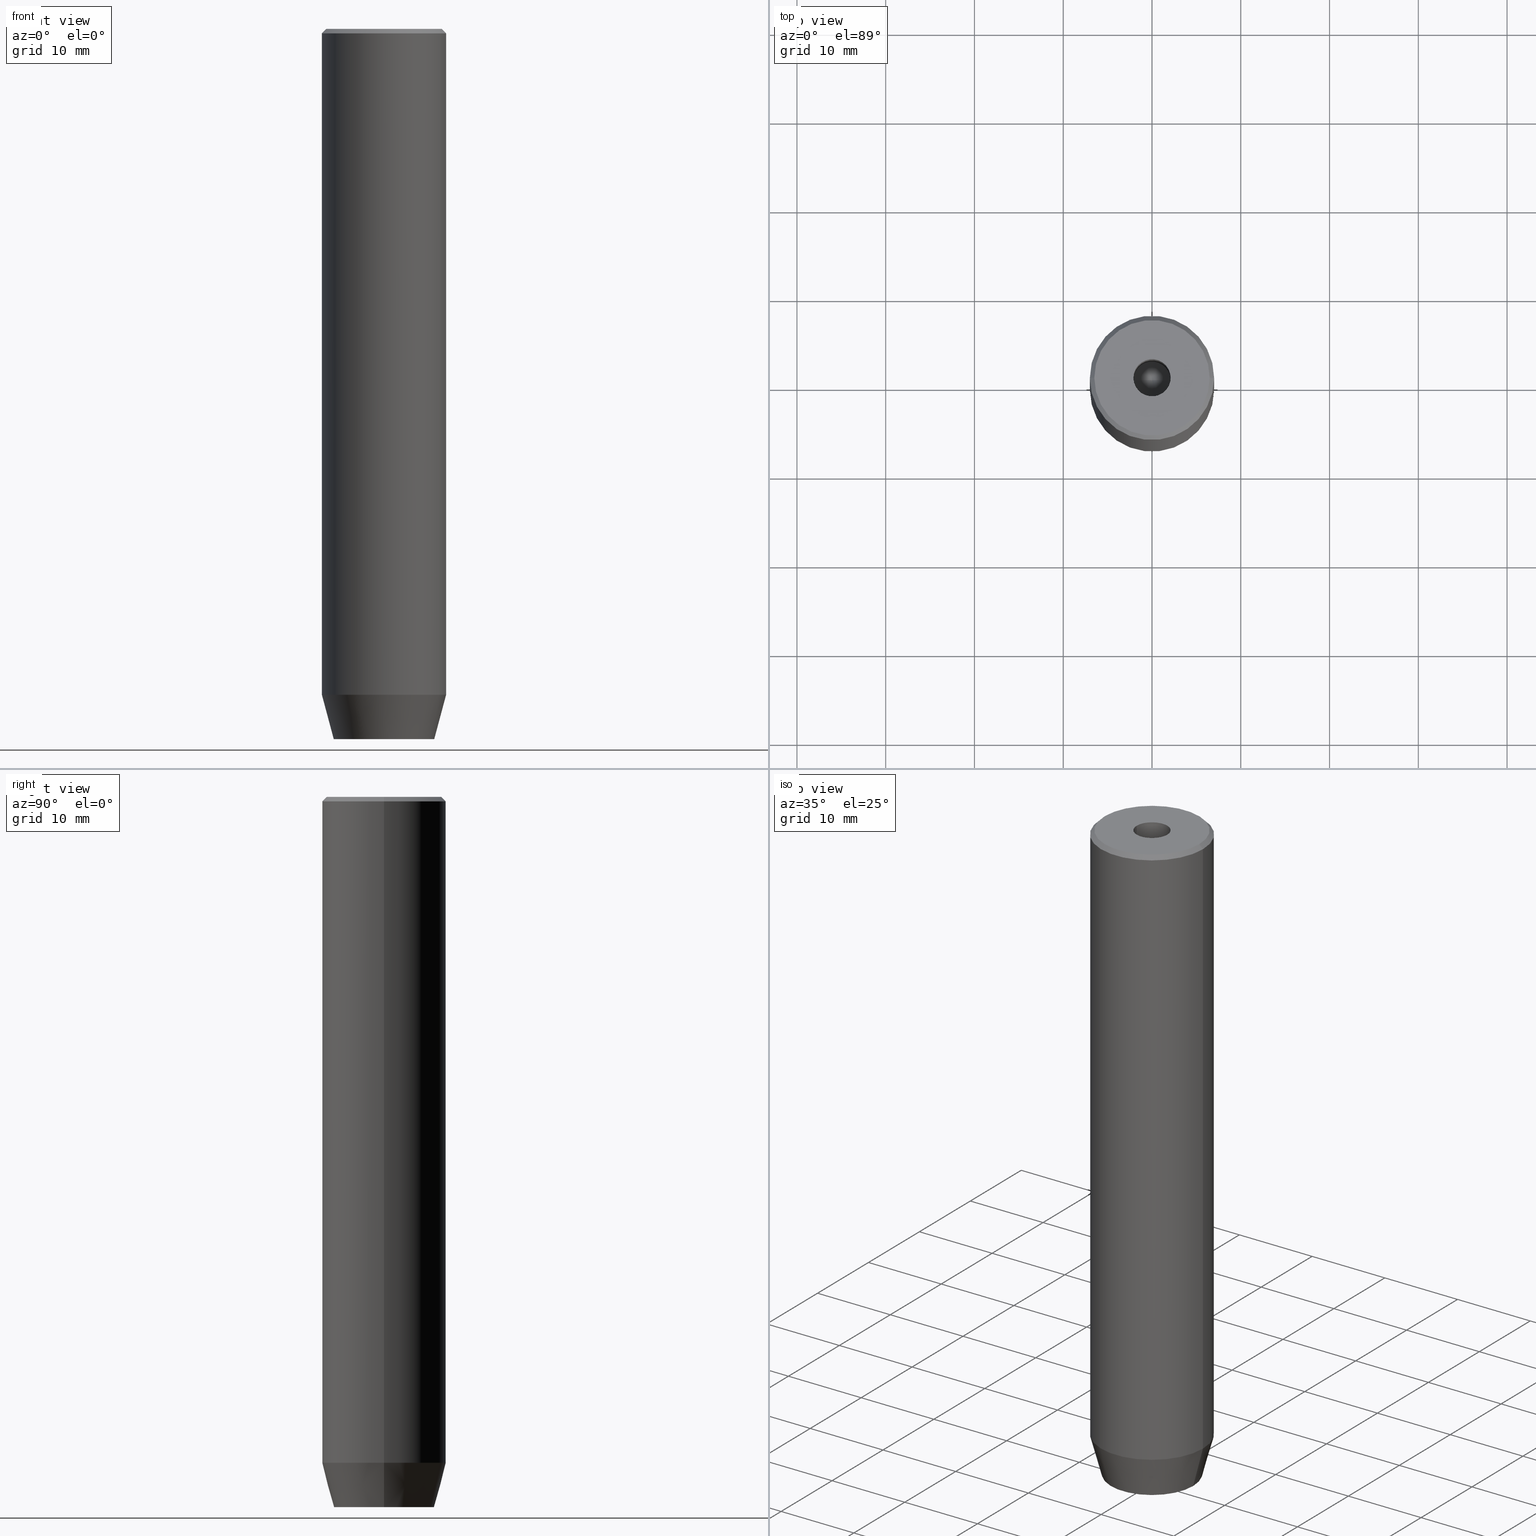
[diagram: canonical four-view strip — front | top / right | iso, engineering-drawing reading convention]
A machine part, canonical four-view strip (front | top / right | iso — engineering-drawing reading convention). The complete STEP part file that produces these views, byte-faithful:
ISO-10303-21;
HEADER;
FILE_DESCRIPTION (( 'STEP AP203' ),
    '1' );
FILE_NAME ('52ea.STEP',
    '2024-01-02T21:53:47',
    ( '' ),
    ( '' ),
    'SwSTEP 2.0',
    'SolidWorks 2019',
    '' );
FILE_SCHEMA (( 'CONFIG_CONTROL_DESIGN' ));
ENDSEC;

DATA;
#1 = LINE ( 'NONE', #492, #580 ) ;
#2 = VECTOR ( 'NONE', #579, 1000.000000000000000 ) ;
#3 = VERTEX_POINT ( 'NONE', #572 ) ;
#4 = DIRECTION ( 'NONE',  ( -0.000000000000000000, -0.000000000000000000, 1.000000000000000000 ) ) ;
#5 = PLANE ( 'NONE',  #430 ) ;
#6 = ORIENTED_EDGE ( 'NONE', *, *, #507, .F. ) ;
#7 = DIRECTION ( 'NONE',  ( 1.000000000000000000, 0.000000000000000000, 0.000000000000000000 ) ) ;
#8 = DIRECTION ( 'NONE',  ( 0.000000000000000000, -0.000000000000000000, 1.000000000000000000 ) ) ;
#9 = ORIENTED_EDGE ( 'NONE', *, *, #253, .F. ) ;
#10 = LINE ( 'NONE', #192, #479 ) ;
#11 = LINE ( 'NONE', #238, #168 ) ;
#12 = ORIENTED_EDGE ( 'NONE', *, *, #484, .T. ) ;
#13 = AXIS2_PLACEMENT_3D ( 'NONE', #178, #43, #88 ) ;
#14 = EDGE_CURVE ( 'NONE', #498, #266, #106, .T. ) ;
#15 = CARTESIAN_POINT ( 'NONE',  ( 0.000000000000000000, 0.000000000000000000, -77.20000000000001705 ) ) ;
#16 = EDGE_LOOP ( 'NONE', ( #370, #559 ) ) ;
#17 = DATE_TIME_ROLE ( 'classification_date' ) ;
#18 = DIRECTION ( 'NONE',  ( 0.000000000000000000, 0.000000000000000000, -1.000000000000000000 ) ) ;
#19 = APPROVAL ( #200, 'NEUR�EN�' ) ;
#20 = APPROVAL ( #391, 'NEUR�EN�' ) ;
#21 = VERTEX_POINT ( 'NONE', #256 ) ;
#22 = CARTESIAN_POINT ( 'NONE',  ( 1.249999999999999778, -2.165063509461096380, -80.00000000000001421 ) ) ;
#23 = ORIENTED_EDGE ( 'NONE', *, *, #439, .F. ) ;
#24 = CIRCLE ( 'NONE', #493, 7.000000000000000000 ) ;
#25 = CIRCLE ( 'NONE', #440, 2.099999999999998757 ) ;
#26 = ORIENTED_EDGE ( 'NONE', *, *, #521, .F. ) ;
#27 = EDGE_CURVE ( 'NONE', #316, #555, #556, .T. ) ;
#28 = FACE_OUTER_BOUND ( 'NONE', #153, .T. ) ;
#29 = APPROVAL_DATE_TIME ( #434, #19 ) ;
#30 = DIRECTION ( 'NONE',  ( 0.000000000000000000, 0.000000000000000000, -1.000000000000000000 ) ) ;
#31 = PERSON_AND_ORGANIZATION ( #463, #120 ) ;
#32 = AXIS2_PLACEMENT_3D ( 'NONE', #84, #258, #123 ) ;
#33 = ADVANCED_FACE ( 'NONE', ( #443 ), #575, .T. ) ;
#34 = DIRECTION ( 'NONE',  ( 1.000000000000000000, 0.000000000000000000, 0.000000000000000000 ) ) ;
#35 = DATE_AND_TIME ( #280, #342 ) ;
#36 = PLANE ( 'NONE',  #119 ) ;
#37 = EDGE_CURVE ( 'NONE', #319, #68, #396, .T. ) ;
#38 = CARTESIAN_POINT ( 'NONE',  ( 2.500000000000000000, 0.000000000000000000, -80.00000000000001421 ) ) ;
#39 = VECTOR ( 'NONE', #582, 1000.000000000000000 ) ;
#40 = CONICAL_SURFACE ( 'NONE', #111, 2.099999999999996980, 1.029744258676652535 ) ;
#41 = CARTESIAN_POINT ( 'NONE',  ( -7.000000000000000000, 8.572527594031473190E-16, -75.00000000000001421 ) ) ;
#42 = CC_DESIGN_PERSON_AND_ORGANIZATION_ASSIGNMENT ( #343, #418, ( #85 ) ) ;
#43 = DIRECTION ( 'NONE',  ( -0.000000000000000000, -0.000000000000000000, 1.000000000000000000 ) ) ;
#44 = ORIENTED_EDGE ( 'NONE', *, *, #250, .T. ) ;
#45 = CARTESIAN_POINT ( 'NONE',  ( -1.249999999999999556, -2.165063509461096825, -80.00000000000001421 ) ) ;
#46 = CARTESIAN_POINT ( 'NONE',  ( 0.000000000000000000, -2.886751345948128211, -80.00000000000001421 ) ) ;
#47 = ORIENTED_EDGE ( 'NONE', *, *, #69, .F. ) ;
#48 = CARTESIAN_POINT ( 'NONE',  ( 7.000000000000000000, 0.000000000000000000, -75.00000000000001421 ) ) ;
#49 = CARTESIAN_POINT ( 'NONE',  ( 0.000000000000000000, 0.000000000000000000, 0.000000000000000000 ) ) ;
#50 = AXIS2_PLACEMENT_3D ( 'NONE', #341, #530, #254 ) ;
#51 = LOCAL_TIME ( 22, 53, 47.00000000000000000, #346 ) ;
#52 = ORIENTED_EDGE ( 'NONE', *, *, #27, .T. ) ;
#53 = PLANE ( 'NONE',  #545 ) ;
#54 = DIRECTION ( 'NONE',  ( -0.8660254037844387076, 0.4999999999999998890, 0.000000000000000000 ) ) ;
#55 = ORIENTED_EDGE ( 'NONE', *, *, #584, .T. ) ;
#56 =( NAMED_UNIT ( * ) PLANE_ANGLE_UNIT ( ) SI_UNIT ( $, .RADIAN. ) );
#57 = DIRECTION ( 'NONE',  ( -1.000000000000000000, 0.000000000000000000, -0.000000000000000000 ) ) ;
#58 = ORIENTED_EDGE ( 'NONE', *, *, #419, .F. ) ;
#59 = ADVANCED_FACE ( 'NONE', ( #28 ), #517, .T. ) ;
#60 = DIRECTION ( 'NONE',  ( 1.000000000000000000, 0.000000000000000000, 0.000000000000000000 ) ) ;
#61 = VECTOR ( 'NONE', #561, 999.9999999999998863 ) ;
#62 = ORIENTED_EDGE ( 'NONE', *, *, #107, .F. ) ;
#63 = COORDINATED_UNIVERSAL_TIME_OFFSET ( 1, 0, .AHEAD. ) ;
#64 = EDGE_CURVE ( 'NONE', #432, #358, #260, .T. ) ;
#65 = FACE_OUTER_BOUND ( 'NONE', #423, .T. ) ;
#66 = VERTEX_POINT ( 'NONE', #386 ) ;
#67 = CARTESIAN_POINT ( 'NONE',  ( -1.250000000000000444, 2.165063509461097269, -77.20000000000001705 ) ) ;
#68 = VERTEX_POINT ( 'NONE', #574 ) ;
#69 = EDGE_CURVE ( 'NONE', #196, #327, #207, .T. ) ;
#70 = EDGE_LOOP ( 'NONE', ( #103, #26, #116, #269 ) ) ;
#71 = AXIS2_PLACEMENT_3D ( 'NONE', #456, #538, #312 ) ;
#72 = CC_DESIGN_APPROVAL ( #19, ( #227 ) ) ;
#73 = ORIENTED_EDGE ( 'NONE', *, *, #455, .F. ) ;
#74 = CALENDAR_DATE ( 2024, 2, 1 ) ;
#75 = CARTESIAN_POINT ( 'NONE',  ( -2.500000000000000444, 0.000000000000000000, -80.00000000000001421 ) ) ;
#76 = SECURITY_CLASSIFICATION_LEVEL ( 'unclassified' ) ;
#77 = ADVANCED_FACE ( 'NONE', ( #577 ), #537, .F. ) ;
#78 = DIRECTION ( 'NONE',  ( 0.000000000000000000, 0.000000000000000000, -1.000000000000000000 ) ) ;
#79 = VECTOR ( 'NONE', #583, 1000.000000000000000 ) ;
#80 = CC_DESIGN_DATE_AND_TIME_ASSIGNMENT ( #241, #17, ( #227 ) ) ;
#81 = ADVANCED_FACE ( 'NONE', ( #295 ), #170, .F. ) ;
#82 = DIRECTION ( 'NONE',  ( 0.8660254037844387076, -0.4999999999999998890, 0.000000000000000000 ) ) ;
#83 = DIRECTION ( 'NONE',  ( 0.5000000000000001110, 0.8660254037844385966, -0.000000000000000000 ) ) ;
#84 = CARTESIAN_POINT ( 'NONE',  ( 0.000000000000000000, 0.000000000000000000, -75.00000000000001421 ) ) ;
#85 = PRODUCT_DEFINITION ( 'NEZN�M�', '', #406, #445 ) ;
#86 = VECTOR ( 'NONE', #411, 1000.000000000000000 ) ;
#87 = VECTOR ( 'NONE', #244, 1000.000000000000000 ) ;
#88 = DIRECTION ( 'NONE',  ( 1.000000000000000000, 0.000000000000000000, 0.000000000000000000 ) ) ;
#89 = ORIENTED_EDGE ( 'NONE', *, *, #476, .T. ) ;
#90 = CARTESIAN_POINT ( 'NONE',  ( 0.000000000000000000, -2.886751345948128211, -77.20000000000001705 ) ) ;
#91 = DIRECTION ( 'NONE',  ( -0.000000000000000000, -0.000000000000000000, 1.000000000000000000 ) ) ;
#92 = ORIENTED_EDGE ( 'NONE', *, *, #394, .F. ) ;
#93 = EDGE_CURVE ( 'NONE', #307, #319, #128, .T. ) ;
#94 = CARTESIAN_POINT ( 'NONE',  ( 7.000000000000000000, 0.000000000000000000, 0.000000000000000000 ) ) ;
#95 = ORIENTED_EDGE ( 'NONE', *, *, #64, .T. ) ;
#96 = DIRECTION ( 'NONE',  ( 0.000000000000000000, 0.000000000000000000, -1.000000000000000000 ) ) ;
#97 = EDGE_CURVE ( 'NONE', #412, #461, #24, .T. ) ;
#98 = CARTESIAN_POINT ( 'NONE',  ( -1.250000000000000444, 2.165063509461097269, -77.20000000000001705 ) ) ;
#99 = CONICAL_SURFACE ( 'NONE', #360, 6.499999999999977796, 0.7853981633974587151 ) ;
#100 = EDGE_LOOP ( 'NONE', ( #206, #47, #58, #337 ) ) ;
#101 = DIRECTION ( 'NONE',  ( -1.000000000000000000, 0.000000000000000000, 0.000000000000000000 ) ) ;
#102 = DIRECTION ( 'NONE',  ( 1.000000000000000000, 0.000000000000000000, 0.000000000000000000 ) ) ;
#103 = ORIENTED_EDGE ( 'NONE', *, *, #245, .F. ) ;
#104 = DIRECTION ( 'NONE',  ( 1.000000000000000000, 0.000000000000000000, 0.000000000000000000 ) ) ;
#105 = CARTESIAN_POINT ( 'NONE',  ( -6.499999999999977796, 0.000000000000000000, 0.000000000000000000 ) ) ;
#106 = LINE ( 'NONE', #163, #261 ) ;
#107 = EDGE_CURVE ( 'NONE', #266, #130, #293, .T. ) ;
#108 = APPROVAL_ROLE ( '' ) ;
#109 = DIRECTION ( 'NONE',  ( 1.000000000000000000, 0.000000000000000000, 0.000000000000000000 ) ) ;
#110 = ORIENTED_EDGE ( 'NONE', *, *, #93, .F. ) ;
#111 = AXIS2_PLACEMENT_3D ( 'NONE', #524, #570, #161 ) ;
#112 = DIRECTION ( 'NONE',  ( -0.000000000000000000, -0.000000000000000000, 1.000000000000000000 ) ) ;
#113 = ORIENTED_EDGE ( 'NONE', *, *, #562, .F. ) ;
#114 = EDGE_CURVE ( 'NONE', #278, #327, #482, .T. ) ;
#115 = CARTESIAN_POINT ( 'NONE',  ( 7.000000000000000000, 0.000000000000000000, -75.00000000000001421 ) ) ;
#116 = ORIENTED_EDGE ( 'NONE', *, *, #403, .T. ) ;
#117 = DIRECTION ( 'NONE',  ( 0.8571673007021113344, 0.000000000000000000, 0.5150380749100558209 ) ) ;
#118 = PERSON_AND_ORGANIZATION_ROLE ( 'creator' ) ;
#119 = AXIS2_PLACEMENT_3D ( 'NONE', #488, #350, #82 ) ;
#120 = ORGANIZATION ( 'NEUR�EN�', 'NEUR�EN�', '' ) ;
#121 = CARTESIAN_POINT ( 'NONE',  ( 0.000000000000000000, 0.000000000000000000, -0.5000000000000117684 ) ) ;
#122 = EDGE_CURVE ( 'NONE', #432, #307, #578, .T. ) ;
#123 = DIRECTION ( 'NONE',  ( 1.000000000000000000, 0.000000000000000000, 0.000000000000000000 ) ) ;
#124 = CARTESIAN_POINT ( 'NONE',  ( 1.250000000000000222, 2.165063509461096825, -77.20000000000001705 ) ) ;
#125 = APPROVAL_DATE_TIME ( #534, #367 ) ;
#126 = DIRECTION ( 'NONE',  ( 0.000000000000000000, 1.000000000000000000, 0.000000000000000000 ) ) ;
#127 = ADVANCED_FACE ( 'NONE', ( #533 ), #36, .F. ) ;
#128 = LINE ( 'NONE', #435, #39 ) ;
#129 = CYLINDRICAL_SURFACE ( 'NONE', #247, 7.000000000000000000 ) ;
#130 = VERTEX_POINT ( 'NONE', #214 ) ;
#131 = FACE_OUTER_BOUND ( 'NONE', #70, .T. ) ;
#132 =( GEOMETRIC_REPRESENTATION_CONTEXT ( 3 ) GLOBAL_UNCERTAINTY_ASSIGNED_CONTEXT ( ( #302 ) ) GLOBAL_UNIT_ASSIGNED_CONTEXT ( ( #320, #56, #276 ) ) REPRESENTATION_CONTEXT ( 'NONE', 'WORKASPACE' ) );
#133 = CARTESIAN_POINT ( 'NONE',  ( -2.099999999999996980, 2.571758278209438013E-16, -15.00000000000000000 ) ) ;
#134 = EDGE_LOOP ( 'NONE', ( #143, #385, #246, #284, #185, #199 ) ) ;
#135 = ADVANCED_FACE ( 'NONE', ( #395 ), #301, .F. ) ;
#136 = DIRECTION ( 'NONE',  ( -0.2588190451025205729, 3.169619151431761860E-17, 0.9659258262890683122 ) ) ;
#137 = DIRECTION ( 'NONE',  ( 1.000000000000000000, 0.000000000000000000, 0.000000000000000000 ) ) ;
#138 = ORIENTED_EDGE ( 'NONE', *, *, #348, .T. ) ;
#139 = CC_DESIGN_PERSON_AND_ORGANIZATION_ASSIGNMENT ( #481, #436, ( #373 ) ) ;
#140 = CARTESIAN_POINT ( 'NONE',  ( 0.000000000000000000, 0.000000000000000000, -1.990051048614449116E-16 ) ) ;
#141 = EDGE_CURVE ( 'NONE', #514, #255, #444, .T. ) ;
#142 = DIRECTION ( 'NONE',  ( 1.000000000000000000, 0.000000000000000000, 0.000000000000000000 ) ) ;
#143 = ORIENTED_EDGE ( 'NONE', *, *, #516, .F. ) ;
#144 = DIRECTION ( 'NONE',  ( -0.000000000000000000, -0.000000000000000000, 1.000000000000000000 ) ) ;
#145 = EDGE_CURVE ( 'NONE', #461, #412, #211, .T. ) ;
#146 = CYLINDRICAL_SURFACE ( 'NONE', #417, 2.099999999999997868 ) ;
#147 = CIRCLE ( 'NONE', #478, 2.099999999999996980 ) ;
#148 = VECTOR ( 'NONE', #329, 1000.000000000000000 ) ;
#149 = ORIENTED_EDGE ( 'NONE', *, *, #122, .T. ) ;
#150 = DIRECTION ( 'NONE',  ( -0.000000000000000000, -0.000000000000000000, 1.000000000000000000 ) ) ;
#151 = CARTESIAN_POINT ( 'NONE',  ( 0.000000000000000000, 0.000000000000000000, 0.000000000000000000 ) ) ;
#152 = EDGE_CURVE ( 'NONE', #68, #3, #1, .T. ) ;
#153 = EDGE_LOOP ( 'NONE', ( #437, #563, #495, #23 ) ) ;
#154 = COORDINATED_UNIVERSAL_TIME_OFFSET ( 1, 0, .AHEAD. ) ;
#155 = CARTESIAN_POINT ( 'NONE',  ( -2.500000000000000444, 0.000000000000000000, -77.20000000000001705 ) ) ;
#156 = ORIENTED_EDGE ( 'NONE', *, *, #245, .T. ) ;
#157 = DATE_TIME_ROLE ( 'creation_date' ) ;
#158 = DIRECTION ( 'NONE',  ( -0.000000000000000000, -0.000000000000000000, 1.000000000000000000 ) ) ;
#159 = VERTEX_POINT ( 'NONE', #46 ) ;
#160 = CONICAL_SURFACE ( 'NONE', #518, 2.099999999999996980, 1.029744258676652535 ) ;
#161 = DIRECTION ( 'NONE',  ( 1.000000000000000000, 0.000000000000000000, 0.000000000000000000 ) ) ;
#162 = ORIENTED_EDGE ( 'NONE', *, *, #93, .T. ) ;
#163 = CARTESIAN_POINT ( 'NONE',  ( 2.099999999999996980, 0.000000000000000000, -15.00000000000000000 ) ) ;
#164 = CARTESIAN_POINT ( 'NONE',  ( -2.500000000000000444, 1.443375672974064772, -77.20000000000001705 ) ) ;
#165 = CARTESIAN_POINT ( 'NONE',  ( 0.000000000000000000, 0.000000000000000000, 0.000000000000000000 ) ) ;
#166 = VECTOR ( 'NONE', #462, 1000.000000000000000 ) ;
#167 = AXIS2_PLACEMENT_3D ( 'NONE', #303, #78, #390 ) ;
#168 = VECTOR ( 'NONE', #158, 1000.000000000000000 ) ;
#169 = ADVANCED_FACE ( 'NONE', ( #222 ), #447, .T. ) ;
#170 = PLANE ( 'NONE',  #50 ) ;
#171 = DIRECTION ( 'NONE',  ( 0.8660254037844385966, -0.5000000000000001110, 0.000000000000000000 ) ) ;
#172 = CARTESIAN_POINT ( 'NONE',  ( -1.084202172485504434E-16, 2.886751345948129543, -77.20000000000001705 ) ) ;
#173 = EDGE_CURVE ( 'NONE', #555, #461, #216, .T. ) ;
#174 = AXIS2_PLACEMENT_3D ( 'NONE', #217, #150, #270 ) ;
#175 = CARTESIAN_POINT ( 'NONE',  ( 0.000000000000000000, 0.000000000000000000, -0.5000000000000117684 ) ) ;
#176 = LINE ( 'NONE', #502, #281 ) ;
#177 = DIRECTION ( 'NONE',  ( 1.000000000000000000, 0.000000000000000000, 0.000000000000000000 ) ) ;
#178 = CARTESIAN_POINT ( 'NONE',  ( 0.000000000000000000, 0.000000000000000000, -75.00000000000001421 ) ) ;
#179 = ORIENTED_EDGE ( 'NONE', *, *, #413, .T. ) ;
#180 = LINE ( 'NONE', #45, #581 ) ;
#181 = VECTOR ( 'NONE', #126, 1000.000000000000000 ) ;
#182 = AXIS2_PLACEMENT_3D ( 'NONE', #165, #442, #527 ) ;
#183 = DIRECTION ( 'NONE',  ( -0.000000000000000000, -0.000000000000000000, 1.000000000000000000 ) ) ;
#184 = ADVANCED_FACE ( 'NONE', ( #460 ), #398, .F. ) ;
#185 = ORIENTED_EDGE ( 'NONE', *, *, #141, .F. ) ;
#186 = DIRECTION ( 'NONE',  ( 1.000000000000000000, 0.000000000000000000, 0.000000000000000000 ) ) ;
#187 = DIRECTION ( 'NONE',  ( 0.000000000000000000, 0.000000000000000000, -1.000000000000000000 ) ) ;
#188 = ORIENTED_EDGE ( 'NONE', *, *, #250, .F. ) ;
#189 = CARTESIAN_POINT ( 'NONE',  ( 2.500000000000000000, 1.443375672974064328, -80.00000000000001421 ) ) ;
#190 = DIRECTION ( 'NONE',  ( 1.000000000000000000, 0.000000000000000000, 0.000000000000000000 ) ) ;
#191 = VERTEX_POINT ( 'NONE', #357 ) ;
#192 = CARTESIAN_POINT ( 'NONE',  ( -1.250000000000000444, 2.165063509461097269, -80.00000000000001421 ) ) ;
#193 = DIRECTION ( 'NONE',  ( 0.2588190451025205729, 0.000000000000000000, 0.9659258262890683122 ) ) ;
#194 = VECTOR ( 'NONE', #215, 1000.000000000000000 ) ;
#195 = AXIS2_PLACEMENT_3D ( 'NONE', #140, #317, #177 ) ;
#196 = VERTEX_POINT ( 'NONE', #362 ) ;
#197 = APPLICATION_PROTOCOL_DEFINITION ( 'international standard', 'config_control_design', 1994, #523 ) ;
#198 = LINE ( 'NONE', #105, #283 ) ;
#199 = ORIENTED_EDGE ( 'NONE', *, *, #472, .F. ) ;
#200 = APPROVAL_STATUS ( 'not_yet_approved' ) ;
#201 = LINE ( 'NONE', #285, #308 ) ;
#202 = ORIENTED_EDGE ( 'NONE', *, *, #521, .T. ) ;
#203 = CARTESIAN_POINT ( 'NONE',  ( -2.099999999999998757, 2.571758278209439985E-16, -1.990051048614449116E-16 ) ) ;
#204 = EDGE_LOOP ( 'NONE', ( #458, #156, #375, #224 ) ) ;
#205 = APPROVAL_PERSON_ORGANIZATION ( #298, #367, #108 ) ;
#206 = ORIENTED_EDGE ( 'NONE', *, *, #114, .T. ) ;
#207 = LINE ( 'NONE', #164, #405 ) ;
#208 = APPROVAL_DATE_TIME ( #35, #20 ) ;
#209 = PRODUCT_RELATED_PRODUCT_CATEGORY ( 'detail', '', ( #373 ) ) ;
#210 = DIRECTION ( 'NONE',  ( -0.8660254037844387076, -0.5000000000000001110, 0.000000000000000000 ) ) ;
#211 = CIRCLE ( 'NONE', #438, 7.000000000000000000 ) ;
#212 = VECTOR ( 'NONE', #136, 1000.000000000000114 ) ;
#213 = DIRECTION ( 'NONE',  ( -0.000000000000000000, -0.000000000000000000, 1.000000000000000000 ) ) ;
#214 = CARTESIAN_POINT ( 'NONE',  ( 2.099999999999998757, 0.000000000000000000, -1.990051048614449116E-16 ) ) ;
#215 = DIRECTION ( 'NONE',  ( 0.000000000000000000, -1.000000000000000000, 0.000000000000000000 ) ) ;
#216 = LINE ( 'NONE', #94, #543 ) ;
#217 = CARTESIAN_POINT ( 'NONE',  ( 0.000000000000000000, 0.000000000000000000, -15.00000000000000000 ) ) ;
#218 = ADVANCED_FACE ( 'NONE', ( #548, #365 ), #408, .T. ) ;
#219 = CARTESIAN_POINT ( 'NONE',  ( 1.249999999999999778, -2.165063509461096380, -77.20000000000001705 ) ) ;
#220 = ORIENTED_EDGE ( 'NONE', *, *, #27, .F. ) ;
#221 = CARTESIAN_POINT ( 'NONE',  ( -7.000000000000000000, 8.572527594031473190E-16, -75.00000000000001421 ) ) ;
#222 = FACE_OUTER_BOUND ( 'NONE', #549, .T. ) ;
#223 = ADVANCED_FACE ( 'NONE', ( #542 ), #5, .F. ) ;
#224 = ORIENTED_EDGE ( 'NONE', *, *, #403, .F. ) ;
#225 = CARTESIAN_POINT ( 'NONE',  ( -3.982994051648894933E-15, 0.000000000000000000, -16.26180729995787644 ) ) ;
#226 = VECTOR ( 'NONE', #210, 999.9999999999998863 ) ;
#227 = SECURITY_CLASSIFICATION ( '', '', #76 ) ;
#228 = DIRECTION ( 'NONE',  ( -0.8660254037844385966, -0.5000000000000001110, 0.000000000000000000 ) ) ;
#229 = EDGE_LOOP ( 'NONE', ( #586, #508, #110, #89 ) ) ;
#230 = CARTESIAN_POINT ( 'NONE',  ( -2.500000000000000444, 0.000000000000000000, -77.20000000000001705 ) ) ;
#231 = CARTESIAN_POINT ( 'NONE',  ( 6.499999999999977796, 7.960204194457768853E-16, 0.000000000000000000 ) ) ;
#232 = VERTEX_POINT ( 'NONE', #315 ) ;
#233 = LINE ( 'NONE', #414, #421 ) ;
#234 = LINE ( 'NONE', #67, #166 ) ;
#235 = ORIENTED_EDGE ( 'NONE', *, *, #419, .T. ) ;
#236 = COORDINATED_UNIVERSAL_TIME_OFFSET ( 1, 0, .AHEAD. ) ;
#237 = VECTOR ( 'NONE', #531, 1000.000000000000000 ) ;
#238 = CARTESIAN_POINT ( 'NONE',  ( -2.099999999999997868, 2.571758278209438999E-16, 0.000000000000000000 ) ) ;
#239 = CIRCLE ( 'NONE', #576, 6.499999999999977796 ) ;
#240 = EDGE_LOOP ( 'NONE', ( #471, #73, #433, #12 ) ) ;
#241 = DATE_AND_TIME ( #486, #569 ) ;
#242 = LINE ( 'NONE', #22, #61 ) ;
#243 = EDGE_LOOP ( 'NONE', ( #202, #324 ) ) ;
#244 = DIRECTION ( 'NONE',  ( -0.000000000000000000, -0.000000000000000000, -1.000000000000000000 ) ) ;
#245 = EDGE_CURVE ( 'NONE', #525, #461, #551, .T. ) ;
#246 = ORIENTED_EDGE ( 'NONE', *, *, #522, .F. ) ;
#247 = AXIS2_PLACEMENT_3D ( 'NONE', #49, #91, #142 ) ;
#248 = ORIENTED_EDGE ( 'NONE', *, *, #173, .T. ) ;
#249 = LOCAL_TIME ( 22, 53, 47.00000000000000000, #154 ) ;
#250 = EDGE_CURVE ( 'NONE', #498, #232, #499, .T. ) ;
#251 = ORIENTED_EDGE ( 'NONE', *, *, #484, .F. ) ;
#252 = PERSON_AND_ORGANIZATION ( #463, #120 ) ;
#253 = EDGE_CURVE ( 'NONE', #316, #412, #176, .T. ) ;
#254 = DIRECTION ( 'NONE',  ( -0.000000000000000000, 0.000000000000000000, -1.000000000000000000 ) ) ;
#255 = VERTEX_POINT ( 'NONE', #268 ) ;
#256 = CARTESIAN_POINT ( 'NONE',  ( 5.660254037844386410, 0.000000000000000000, -80.00000000000001421 ) ) ;
#257 = AXIS2_PLACEMENT_3D ( 'NONE', #267, #144, #104 ) ;
#258 = DIRECTION ( 'NONE',  ( -0.000000000000000000, -0.000000000000000000, 1.000000000000000000 ) ) ;
#259 = DIRECTION ( 'NONE',  ( -0.8660254037844385966, 0.5000000000000001110, 0.000000000000000000 ) ) ;
#260 = LINE ( 'NONE', #172, #237 ) ;
#261 = VECTOR ( 'NONE', #117, 1000.000000000000000 ) ;
#262 = CC_DESIGN_SECURITY_CLASSIFICATION ( #227, ( #406 ) ) ;
#263 = DIRECTION ( 'NONE',  ( -0.5000000000000001110, 0.8660254037844385966, 0.000000000000000000 ) ) ;
#264 = ORIENTED_EDGE ( 'NONE', *, *, #145, .T. ) ;
#265 = FACE_OUTER_BOUND ( 'NONE', #243, .T. ) ;
#266 = VERTEX_POINT ( 'NONE', #585 ) ;
#267 = CARTESIAN_POINT ( 'NONE',  ( 0.000000000000000000, 0.000000000000000000, -80.00000000000001421 ) ) ;
#268 = CARTESIAN_POINT ( 'NONE',  ( 2.500000000000000000, -1.443375672974064106, -80.00000000000001421 ) ) ;
#269 = ORIENTED_EDGE ( 'NONE', *, *, #145, .F. ) ;
#270 = DIRECTION ( 'NONE',  ( 1.000000000000000000, 0.000000000000000000, 0.000000000000000000 ) ) ;
#271 = DIRECTION ( 'NONE',  ( 0.8660254037844385966, 0.4999999999999999445, 0.000000000000000000 ) ) ;
#272 = EDGE_LOOP ( 'NONE', ( #179, #335, #410, #503 ) ) ;
#273 = DIRECTION ( 'NONE',  ( 0.000000000000000000, 0.000000000000000000, 1.000000000000000000 ) ) ;
#274 = CARTESIAN_POINT ( 'NONE',  ( 7.000000000000000000, 0.000000000000000000, -0.5000000000000117684 ) ) ;
#275 = ORIENTED_EDGE ( 'NONE', *, *, #394, .T. ) ;
#276 =( NAMED_UNIT ( * ) SI_UNIT ( $, .STERADIAN. ) SOLID_ANGLE_UNIT ( ) );
#277 = DIRECTION ( 'NONE',  ( -0.7071067811865549002, 0.000000000000000000, -0.7071067811865401342 ) ) ;
#278 = VERTEX_POINT ( 'NONE', #305 ) ;
#279 = EDGE_CURVE ( 'NONE', #66, #21, #568, .T. ) ;
#280 = CALENDAR_DATE ( 2024, 2, 1 ) ;
#281 = VECTOR ( 'NONE', #354, 1000.000000000000000 ) ;
#282 = LINE ( 'NONE', #115, #397 ) ;
#283 = VECTOR ( 'NONE', #277, 1000.000000000000000 ) ;
#284 = ORIENTED_EDGE ( 'NONE', *, *, #331, .F. ) ;
#285 = CARTESIAN_POINT ( 'NONE',  ( 2.500000000000000000, -1.443375672974064106, -77.20000000000001705 ) ) ;
#286 = ORIENTED_EDGE ( 'NONE', *, *, #14, .T. ) ;
#287 = DIRECTION ( 'NONE',  ( -0.000000000000000000, -0.000000000000000000, 1.000000000000000000 ) ) ;
#288 = ORIENTED_EDGE ( 'NONE', *, *, #14, .F. ) ;
#289 = AXIS2_PLACEMENT_3D ( 'NONE', #297, #441, #34 ) ;
#290 = EDGE_LOOP ( 'NONE', ( #92, #453, #552, #338 ) ) ;
#291 = AXIS2_PLACEMENT_3D ( 'NONE', #15, #18, #57 ) ;
#292 = APPROVAL_ROLE ( '' ) ;
#293 = LINE ( 'NONE', #485, #2 ) ;
#294 = PERSON_AND_ORGANIZATION ( #463, #120 ) ;
#295 = FACE_OUTER_BOUND ( 'NONE', #229, .T. ) ;
#296 = ADVANCED_FACE ( 'NONE', ( #497 ), #129, .T. ) ;
#297 = CARTESIAN_POINT ( 'NONE',  ( 0.000000000000000000, 0.000000000000000000, -75.00000000000001421 ) ) ;
#298 = PERSON_AND_ORGANIZATION ( #463, #120 ) ;
#299 = AXIS2_PLACEMENT_3D ( 'NONE', #490, #83, #259 ) ;
#300 = APPROVAL_PERSON_ORGANIZATION ( #252, #19, #292 ) ;
#301 = PLANE ( 'NONE',  #299 ) ;
#302 = UNCERTAINTY_MEASURE_WITH_UNIT (LENGTH_MEASURE( 1.000000000000000082E-05 ), #320, 'distance_accuracy_value', 'NONE');
#303 = CARTESIAN_POINT ( 'NONE',  ( 0.000000000000000000, 0.000000000000000000, 0.000000000000000000 ) ) ;
#304 = ADVANCED_FACE ( 'NONE', ( #452, #265 ), #402, .T. ) ;
#305 = CARTESIAN_POINT ( 'NONE',  ( -2.500000000000000444, -1.443375672974064328, -80.00000000000001421 ) ) ;
#306 = ADVANCED_FACE ( 'NONE', ( #369 ), #146, .F. ) ;
#307 = VERTEX_POINT ( 'NONE', #446 ) ;
#308 = VECTOR ( 'NONE', #425, 1000.000000000000000 ) ;
#309 = CIRCLE ( 'NONE', #257, 5.660254037844386410 ) ;
#310 = ADVANCED_BREP_SHAPE_REPRESENTATION ( '52ea', ( #515, #182 ), #132 ) ;
#311 = DIRECTION ( 'NONE',  ( -1.000000000000000000, 0.000000000000000000, 0.000000000000000000 ) ) ;
#312 = DIRECTION ( 'NONE',  ( 1.000000000000000000, 0.000000000000000000, 0.000000000000000000 ) ) ;
#313 = ORIENTED_EDGE ( 'NONE', *, *, #37, .F. ) ;
#314 = DIRECTION ( 'NONE',  ( -0.000000000000000000, -0.000000000000000000, 1.000000000000000000 ) ) ;
#315 = CARTESIAN_POINT ( 'NONE',  ( -2.099999999999996980, 2.571758278209438013E-16, -15.00000000000000000 ) ) ;
#316 = VERTEX_POINT ( 'NONE', #41 ) ;
#317 = DIRECTION ( 'NONE',  ( -0.000000000000000000, -0.000000000000000000, 1.000000000000000000 ) ) ;
#318 = CARTESIAN_POINT ( 'NONE',  ( 0.000000000000000000, 0.000000000000000000, 0.000000000000000000 ) ) ;
#319 = VERTEX_POINT ( 'NONE', #558 ) ;
#320 =( LENGTH_UNIT ( ) NAMED_UNIT ( * ) SI_UNIT ( .MILLI., .METRE. ) );
#321 = CLOSED_SHELL ( 'NONE', ( #77, #457, #33, #59, #296, #218, #304, #345, #169, #567, #184, #465, #127, #223, #81, #135, #409, #535, #306 ) ) ;
#322 = AXIS2_PLACEMENT_3D ( 'NONE', #377, #112, #519 ) ;
#323 = CARTESIAN_POINT ( 'NONE',  ( 0.000000000000000000, 0.000000000000000000, 0.000000000000000000 ) ) ;
#324 = ORIENTED_EDGE ( 'NONE', *, *, #428, .T. ) ;
#325 = DIRECTION ( 'NONE',  ( -0.000000000000000000, -0.000000000000000000, -1.000000000000000000 ) ) ;
#326 = LINE ( 'NONE', #155, #148 ) ;
#327 = VERTEX_POINT ( 'NONE', #466 ) ;
#328 = APPROVAL_ROLE ( '' ) ;
#329 = DIRECTION ( 'NONE',  ( 0.000000000000000000, 1.000000000000000000, 0.000000000000000000 ) ) ;
#330 = ORIENTED_EDGE ( 'NONE', *, *, #279, .T. ) ;
#331 = EDGE_CURVE ( 'NONE', #255, #159, #242, .T. ) ;
#332 = CC_DESIGN_PERSON_AND_ORGANIZATION_ASSIGNMENT ( #532, #339, ( #227 ) ) ;
#333 = DIRECTION ( 'NONE',  ( 1.000000000000000000, 0.000000000000000000, 0.000000000000000000 ) ) ;
#334 = LOCAL_TIME ( 22, 53, 47.00000000000000000, #376 ) ;
#335 = ORIENTED_EDGE ( 'NONE', *, *, #253, .T. ) ;
#336 = CARTESIAN_POINT ( 'NONE',  ( -1.084202172485504434E-16, 2.886751345948129543, -77.20000000000001705 ) ) ;
#337 = ORIENTED_EDGE ( 'NONE', *, *, #455, .T. ) ;
#338 = ORIENTED_EDGE ( 'NONE', *, *, #562, .T. ) ;
#339 = PERSON_AND_ORGANIZATION_ROLE ( 'classification_officer' ) ;
#340 = AXIS2_PLACEMENT_3D ( 'NONE', #344, #213, #536 ) ;
#341 = CARTESIAN_POINT ( 'NONE',  ( 2.500000000000000000, 0.000000000000000000, -77.20000000000001705 ) ) ;
#342 = LOCAL_TIME ( 22, 53, 47.00000000000000000, #236 ) ;
#343 = PERSON_AND_ORGANIZATION ( #463, #120 ) ;
#344 = CARTESIAN_POINT ( 'NONE',  ( 0.000000000000000000, 0.000000000000000000, 0.000000000000000000 ) ) ;
#345 = ADVANCED_FACE ( 'NONE', ( #65 ), #510, .T. ) ;
#346 = COORDINATED_UNIVERSAL_TIME_OFFSET ( 1, 0, .AHEAD. ) ;
#347 = DIRECTION ( 'NONE',  ( 1.000000000000000000, 0.000000000000000000, 0.000000000000000000 ) ) ;
#348 = EDGE_CURVE ( 'NONE', #266, #232, #147, .T. ) ;
#349 = EDGE_CURVE ( 'NONE', #196, #432, #234, .T. ) ;
#350 = DIRECTION ( 'NONE',  ( -0.4999999999999998890, -0.8660254037844387076, 0.000000000000000000 ) ) ;
#351 = CIRCLE ( 'NONE', #195, 2.099999999999998757 ) ;
#352 = DIRECTION ( 'NONE',  ( 0.000000000000000000, 0.000000000000000000, -1.000000000000000000 ) ) ;
#353 = CC_DESIGN_PERSON_AND_ORGANIZATION_ASSIGNMENT ( #424, #118, ( #406 ) ) ;
#354 = DIRECTION ( 'NONE',  ( -0.000000000000000000, -0.000000000000000000, 1.000000000000000000 ) ) ;
#355 = EDGE_LOOP ( 'NONE', ( #477, #383, #546, #95 ) ) ;
#356 = DIRECTION ( 'NONE',  ( -0.8660254037844387076, 0.4999999999999998890, 0.000000000000000000 ) ) ;
#357 = CARTESIAN_POINT ( 'NONE',  ( -6.499999999999977796, 0.000000000000000000, 0.000000000000000000 ) ) ;
#358 = VERTEX_POINT ( 'NONE', #415 ) ;
#359 = AXIS2_PLACEMENT_3D ( 'NONE', #554, #187, #449 ) ;
#360 = AXIS2_PLACEMENT_3D ( 'NONE', #501, #96, #311 ) ;
#361 = FACE_OUTER_BOUND ( 'NONE', #426, .T. ) ;
#362 = CARTESIAN_POINT ( 'NONE',  ( -2.500000000000000444, 1.443375672974064772, -77.20000000000001705 ) ) ;
#363 = ORIENTED_EDGE ( 'NONE', *, *, #152, .T. ) ;
#364 = CARTESIAN_POINT ( 'NONE',  ( 6.499999999999977796, 8.266365894244620528E-16, 0.000000000000000000 ) ) ;
#365 = FACE_OUTER_BOUND ( 'NONE', #16, .T. ) ;
#366 = ORIENTED_EDGE ( 'NONE', *, *, #64, .F. ) ;
#367 = APPROVAL ( #560, 'NEUR�EN�' ) ;
#368 = DIRECTION ( 'NONE',  ( 0.8660254037844385966, -0.5000000000000001110, 0.000000000000000000 ) ) ;
#369 = FACE_OUTER_BOUND ( 'NONE', #290, .T. ) ;
#370 = ORIENTED_EDGE ( 'NONE', *, *, #544, .F. ) ;
#371 = CARTESIAN_POINT ( 'NONE',  ( 0.000000000000000000, 0.000000000000000000, 0.000000000000000000 ) ) ;
#372 = VECTOR ( 'NONE', #171, 1000.000000000000000 ) ;
#373 = PRODUCT ( '52ea', '52ea', '', ( #379 ) ) ;
#374 = CARTESIAN_POINT ( 'NONE',  ( -2.500000000000000444, -1.443375672974064328, -77.20000000000001705 ) ) ;
#375 = ORIENTED_EDGE ( 'NONE', *, *, #97, .F. ) ;
#376 = COORDINATED_UNIVERSAL_TIME_OFFSET ( 1, 0, .AHEAD. ) ;
#377 = CARTESIAN_POINT ( 'NONE',  ( 0.000000000000000000, 0.000000000000000000, -75.00000000000001421 ) ) ;
#378 = ORIENTED_EDGE ( 'NONE', *, *, #439, .T. ) ;
#379 = MECHANICAL_CONTEXT ( 'NONE', #489, 'mechanical' ) ;
#380 = PLANE ( 'NONE',  #291 ) ;
#381 = VERTEX_POINT ( 'NONE', #203 ) ;
#382 = FACE_OUTER_BOUND ( 'NONE', #500, .T. ) ;
#383 = ORIENTED_EDGE ( 'NONE', *, *, #476, .F. ) ;
#384 = PRODUCT_DEFINITION_SHAPE ( 'NONE', 'NONE',  #85 ) ;
#385 = ORIENTED_EDGE ( 'NONE', *, *, #114, .F. ) ;
#386 = CARTESIAN_POINT ( 'NONE',  ( -5.660254037844386410, 7.752169791919240742E-16, -80.00000000000001421 ) ) ;
#387 = SHAPE_DEFINITION_REPRESENTATION ( #384, #310 ) ;
#388 = EDGE_CURVE ( 'NONE', #319, #255, #201, .T. ) ;
#389 = AXIS2_PLACEMENT_3D ( 'NONE', #98, #263, #228 ) ;
#390 = DIRECTION ( 'NONE',  ( -1.000000000000000000, 0.000000000000000000, 0.000000000000000000 ) ) ;
#391 = APPROVAL_STATUS ( 'not_yet_approved' ) ;
#392 = DIRECTION ( 'NONE',  ( -0.000000000000000000, -0.000000000000000000, -1.000000000000000000 ) ) ;
#393 = DATE_AND_TIME ( #564, #249 ) ;
#394 = EDGE_CURVE ( 'NONE', #232, #381, #11, .T. ) ;
#395 = FACE_OUTER_BOUND ( 'NONE', #355, .T. ) ;
#396 = LINE ( 'NONE', #491, #226 ) ;
#397 = VECTOR ( 'NONE', #193, 1000.000000000000114 ) ;
#398 = PLANE ( 'NONE',  #389 ) ;
#399 = DIRECTION ( 'NONE',  ( 0.5000000000000000000, -0.8660254037844387076, 0.000000000000000000 ) ) ;
#400 = EDGE_LOOP ( 'NONE', ( #474, #366, #404, #526 ) ) ;
#401 = DIRECTION ( 'NONE',  ( 0.8660254037844385966, 0.5000000000000001110, 0.000000000000000000 ) ) ;
#402 = PLANE ( 'NONE',  #420 ) ;
#403 = EDGE_CURVE ( 'NONE', #191, #412, #198, .T. ) ;
#404 = ORIENTED_EDGE ( 'NONE', *, *, #349, .F. ) ;
#405 = VECTOR ( 'NONE', #392, 1000.000000000000000 ) ;
#406 = PRODUCT_DEFINITION_FORMATION_WITH_SPECIFIED_SOURCE ( 'LIBOVOLN�', '', #373, .NOT_KNOWN. ) ;
#407 = DIRECTION ( 'NONE',  ( -0.000000000000000000, -0.000000000000000000, 1.000000000000000000 ) ) ;
#408 = PLANE ( 'NONE',  #359 ) ;
#409 = ADVANCED_FACE ( 'NONE', ( #475 ), #380, .T. ) ;
#410 = ORIENTED_EDGE ( 'NONE', *, *, #97, .T. ) ;
#411 = DIRECTION ( 'NONE',  ( -0.8571673007021113344, 1.049727191138617463E-16, 0.5150380749100558209 ) ) ;
#412 = VERTEX_POINT ( 'NONE', #565 ) ;
#413 = EDGE_CURVE ( 'NONE', #555, #316, #496, .T. ) ;
#414 = CARTESIAN_POINT ( 'NONE',  ( 1.250000000000000222, 2.165063509461096825, -80.00000000000001421 ) ) ;
#415 = CARTESIAN_POINT ( 'NONE',  ( 0.000000000000000000, 2.886751345948129099, -80.00000000000001421 ) ) ;
#416 = EDGE_LOOP ( 'NONE', ( #464, #149, #162, #467, #363, #235 ) ) ;
#417 = AXIS2_PLACEMENT_3D ( 'NONE', #323, #506, #102 ) ;
#418 = PERSON_AND_ORGANIZATION_ROLE ( 'creator' ) ;
#419 = EDGE_CURVE ( 'NONE', #3, #196, #326, .T. ) ;
#420 = AXIS2_PLACEMENT_3D ( 'NONE', #318, #8, #190 ) ;
#421 = VECTOR ( 'NONE', #368, 1000.000000000000000 ) ;
#422 = DIRECTION ( 'NONE',  ( -0.000000000000000000, -0.000000000000000000, 1.000000000000000000 ) ) ;
#423 = EDGE_LOOP ( 'NONE', ( #9, #52, #248, #264 ) ) ;
#424 = PERSON_AND_ORGANIZATION ( #463, #120 ) ;
#425 = DIRECTION ( 'NONE',  ( -0.000000000000000000, -0.000000000000000000, -1.000000000000000000 ) ) ;
#426 = EDGE_LOOP ( 'NONE', ( #188, #286, #138 ) ) ;
#427 = CARTESIAN_POINT ( 'NONE',  ( 0.000000000000000000, 0.000000000000000000, -15.00000000000000000 ) ) ;
#428 = EDGE_CURVE ( 'NONE', #525, #191, #448, .T. ) ;
#429 = EDGE_LOOP ( 'NONE', ( #511, #251, #313, #520 ) ) ;
#430 = AXIS2_PLACEMENT_3D ( 'NONE', #219, #399, #271 ) ;
#431 = VECTOR ( 'NONE', #325, 1000.000000000000000 ) ;
#432 = VERTEX_POINT ( 'NONE', #336 ) ;
#433 = ORIENTED_EDGE ( 'NONE', *, *, #152, .F. ) ;
#434 = DATE_AND_TIME ( #74, #51 ) ;
#435 = CARTESIAN_POINT ( 'NONE',  ( 2.500000000000000000, 0.000000000000000000, -77.20000000000001705 ) ) ;
#436 = PERSON_AND_ORGANIZATION_ROLE ( 'design_owner' ) ;
#437 = ORIENTED_EDGE ( 'NONE', *, *, #544, .T. ) ;
#438 = AXIS2_PLACEMENT_3D ( 'NONE', #175, #352, #137 ) ;
#439 = EDGE_CURVE ( 'NONE', #21, #555, #282, .T. ) ;
#440 = AXIS2_PLACEMENT_3D ( 'NONE', #509, #314, #557 ) ;
#441 = DIRECTION ( 'NONE',  ( -0.000000000000000000, -0.000000000000000000, 1.000000000000000000 ) ) ;
#442 = DIRECTION ( 'NONE',  ( 0.000000000000000000, 0.000000000000000000, 1.000000000000000000 ) ) ;
#443 = FACE_OUTER_BOUND ( 'NONE', #204, .T. ) ;
#444 = LINE ( 'NONE', #38, #194 ) ;
#445 = DESIGN_CONTEXT ( 'detailed design', #523, 'design' ) ;
#446 = CARTESIAN_POINT ( 'NONE',  ( 2.500000000000000000, 1.443375672974064328, -77.20000000000001705 ) ) ;
#447 = CONICAL_SURFACE ( 'NONE', #13, 7.000000000000000000, 0.2617993877991492413 ) ;
#448 = CIRCLE ( 'NONE', #459, 6.499999999999977796 ) ;
#449 = DIRECTION ( 'NONE',  ( -1.000000000000000000, 0.000000000000000000, -0.000000000000000000 ) ) ;
#450 = ORIENTED_EDGE ( 'NONE', *, *, #584, .F. ) ;
#451 = CARTESIAN_POINT ( 'NONE',  ( 2.500000000000000000, 1.443375672974064328, -77.20000000000001705 ) ) ;
#452 = FACE_BOUND ( 'NONE', #571, .T. ) ;
#453 = ORIENTED_EDGE ( 'NONE', *, *, #348, .F. ) ;
#454 = LINE ( 'NONE', #90, #494 ) ;
#455 = EDGE_CURVE ( 'NONE', #3, #278, #470, .T. ) ;
#456 = CARTESIAN_POINT ( 'NONE',  ( 0.000000000000000000, 0.000000000000000000, -80.00000000000001421 ) ) ;
#457 = ADVANCED_FACE ( 'NONE', ( #382 ), #40, .F. ) ;
#458 = ORIENTED_EDGE ( 'NONE', *, *, #428, .F. ) ;
#459 = AXIS2_PLACEMENT_3D ( 'NONE', #513, #473, #109 ) ;
#460 = FACE_OUTER_BOUND ( 'NONE', #400, .T. ) ;
#461 = VERTEX_POINT ( 'NONE', #274 ) ;
#462 = DIRECTION ( 'NONE',  ( 0.8660254037844385966, 0.5000000000000001110, 0.000000000000000000 ) ) ;
#463 = PERSON ( 'NEUR�EN�', 'NEUR�EN�', 'NEUR�EN�', ('NEUR�EN�'), ('NEUR�EN�'), ('NEUR�EN�') ) ;
#464 = ORIENTED_EDGE ( 'NONE', *, *, #349, .T. ) ;
#465 = ADVANCED_FACE ( 'NONE', ( #541 ), #53, .F. ) ;
#466 = CARTESIAN_POINT ( 'NONE',  ( -2.500000000000000444, 1.443375672974064772, -80.00000000000001421 ) ) ;
#467 = ORIENTED_EDGE ( 'NONE', *, *, #37, .T. ) ;
#468 = PERSON_AND_ORGANIZATION_ROLE ( 'design_supplier' ) ;
#469 = CIRCLE ( 'NONE', #174, 2.099999999999996980 ) ;
#470 = LINE ( 'NONE', #374, #87 ) ;
#471 = ORIENTED_EDGE ( 'NONE', *, *, #522, .T. ) ;
#472 = EDGE_CURVE ( 'NONE', #358, #514, #233, .T. ) ;
#473 = DIRECTION ( 'NONE',  ( -0.000000000000000000, -0.000000000000000000, 1.000000000000000000 ) ) ;
#474 = ORIENTED_EDGE ( 'NONE', *, *, #516, .T. ) ;
#475 = FACE_OUTER_BOUND ( 'NONE', #416, .T. ) ;
#476 = EDGE_CURVE ( 'NONE', #307, #514, #587, .T. ) ;
#477 = ORIENTED_EDGE ( 'NONE', *, *, #472, .T. ) ;
#478 = AXIS2_PLACEMENT_3D ( 'NONE', #427, #422, #333 ) ;
#479 = VECTOR ( 'NONE', #401, 1000.000000000000000 ) ;
#480 = ORIENTED_EDGE ( 'NONE', *, *, #539, .T. ) ;
#481 = PERSON_AND_ORGANIZATION ( #463, #120 ) ;
#482 = LINE ( 'NONE', #75, #181 ) ;
#483 = CALENDAR_DATE ( 2024, 2, 1 ) ;
#484 = EDGE_CURVE ( 'NONE', #68, #159, #454, .T. ) ;
#485 = CARTESIAN_POINT ( 'NONE',  ( 2.099999999999997868, 0.000000000000000000, 0.000000000000000000 ) ) ;
#486 = CALENDAR_DATE ( 2024, 2, 1 ) ;
#487 = CC_DESIGN_APPROVAL ( #20, ( #406 ) ) ;
#488 = CARTESIAN_POINT ( 'NONE',  ( -1.249999999999999556, -2.165063509461096825, -77.20000000000001705 ) ) ;
#489 = APPLICATION_CONTEXT ( 'configuration controlled 3d designs of mechanical parts and assemblies' ) ;
#490 = CARTESIAN_POINT ( 'NONE',  ( 1.250000000000000222, 2.165063509461096825, -77.20000000000001705 ) ) ;
#491 = CARTESIAN_POINT ( 'NONE',  ( 1.249999999999999778, -2.165063509461096380, -77.20000000000001705 ) ) ;
#492 = CARTESIAN_POINT ( 'NONE',  ( -1.249999999999999556, -2.165063509461096825, -77.20000000000001705 ) ) ;
#493 = AXIS2_PLACEMENT_3D ( 'NONE', #121, #30, #347 ) ;
#494 = VECTOR ( 'NONE', #553, 1000.000000000000000 ) ;
#495 = ORIENTED_EDGE ( 'NONE', *, *, #413, .F. ) ;
#496 = CIRCLE ( 'NONE', #322, 7.000000000000000000 ) ;
#497 = FACE_OUTER_BOUND ( 'NONE', #272, .T. ) ;
#498 = VERTEX_POINT ( 'NONE', #225 ) ;
#499 = LINE ( 'NONE', #133, #86 ) ;
#500 = EDGE_LOOP ( 'NONE', ( #288, #44, #55 ) ) ;
#501 = CARTESIAN_POINT ( 'NONE',  ( 0.000000000000000000, 0.000000000000000000, 0.000000000000000000 ) ) ;
#502 = CARTESIAN_POINT ( 'NONE',  ( -7.000000000000000000, 8.572527594031473190E-16, 0.000000000000000000 ) ) ;
#503 = ORIENTED_EDGE ( 'NONE', *, *, #173, .F. ) ;
#504 = AXIS2_PLACEMENT_3D ( 'NONE', #151, #287, #60 ) ;
#505 = CC_DESIGN_APPROVAL ( #367, ( #85 ) ) ;
#506 = DIRECTION ( 'NONE',  ( -0.000000000000000000, -0.000000000000000000, 1.000000000000000000 ) ) ;
#507 = EDGE_CURVE ( 'NONE', #66, #316, #547, .T. ) ;
#508 = ORIENTED_EDGE ( 'NONE', *, *, #388, .F. ) ;
#509 = CARTESIAN_POINT ( 'NONE',  ( 0.000000000000000000, 0.000000000000000000, -1.990051048614449116E-16 ) ) ;
#510 = CYLINDRICAL_SURFACE ( 'NONE', #504, 7.000000000000000000 ) ;
#511 = ORIENTED_EDGE ( 'NONE', *, *, #331, .T. ) ;
#512 = APPLICATION_PROTOCOL_DEFINITION ( 'international standard', 'config_control_design', 1994, #489 ) ;
#513 = CARTESIAN_POINT ( 'NONE',  ( 0.000000000000000000, 0.000000000000000000, 0.000000000000000000 ) ) ;
#514 = VERTEX_POINT ( 'NONE', #189 ) ;
#515 = MANIFOLD_SOLID_BREP ( 'Vrt�k z�vitn�ku pro M5 z�vit1', #321 ) ;
#516 = EDGE_CURVE ( 'NONE', #327, #358, #10, .T. ) ;
#517 = CONICAL_SURFACE ( 'NONE', #289, 7.000000000000000000, 0.2617993877991492413 ) ;
#518 = AXIS2_PLACEMENT_3D ( 'NONE', #550, #407, #7 ) ;
#519 = DIRECTION ( 'NONE',  ( 1.000000000000000000, 0.000000000000000000, 0.000000000000000000 ) ) ;
#520 = ORIENTED_EDGE ( 'NONE', *, *, #388, .T. ) ;
#521 = EDGE_CURVE ( 'NONE', #191, #525, #239, .T. ) ;
#522 = EDGE_CURVE ( 'NONE', #159, #278, #180, .T. ) ;
#523 = APPLICATION_CONTEXT ( 'configuration controlled 3d designs of mechanical parts and assemblies' ) ;
#524 = CARTESIAN_POINT ( 'NONE',  ( 0.000000000000000000, 0.000000000000000000, -15.00000000000000000 ) ) ;
#525 = VERTEX_POINT ( 'NONE', #364 ) ;
#526 = ORIENTED_EDGE ( 'NONE', *, *, #69, .T. ) ;
#527 = DIRECTION ( 'NONE',  ( 1.000000000000000000, 0.000000000000000000, 0.000000000000000000 ) ) ;
#528 = APPROVAL_PERSON_ORGANIZATION ( #294, #20, #328 ) ;
#529 = CC_DESIGN_PERSON_AND_ORGANIZATION_ASSIGNMENT ( #31, #468, ( #406 ) ) ;
#530 = DIRECTION ( 'NONE',  ( 1.000000000000000000, 0.000000000000000000, -0.000000000000000000 ) ) ;
#531 = DIRECTION ( 'NONE',  ( -0.000000000000000000, -0.000000000000000000, -1.000000000000000000 ) ) ;
#532 = PERSON_AND_ORGANIZATION ( #463, #120 ) ;
#533 = FACE_OUTER_BOUND ( 'NONE', #240, .T. ) ;
#534 = DATE_AND_TIME ( #483, #334 ) ;
#535 = ADVANCED_FACE ( 'NONE', ( #361 ), #160, .F. ) ;
#536 = DIRECTION ( 'NONE',  ( 1.000000000000000000, 0.000000000000000000, 0.000000000000000000 ) ) ;
#537 = CYLINDRICAL_SURFACE ( 'NONE', #340, 2.099999999999997868 ) ;
#538 = DIRECTION ( 'NONE',  ( -0.000000000000000000, -0.000000000000000000, 1.000000000000000000 ) ) ;
#539 = EDGE_CURVE ( 'NONE', #381, #130, #25, .T. ) ;
#540 = EDGE_LOOP ( 'NONE', ( #450, #275, #480, #62 ) ) ;
#541 = FACE_OUTER_BOUND ( 'NONE', #100, .T. ) ;
#542 = FACE_OUTER_BOUND ( 'NONE', #429, .T. ) ;
#543 = VECTOR ( 'NONE', #183, 1000.000000000000000 ) ;
#544 = EDGE_CURVE ( 'NONE', #21, #66, #309, .T. ) ;
#545 = AXIS2_PLACEMENT_3D ( 'NONE', #230, #101, #273 ) ;
#546 = ORIENTED_EDGE ( 'NONE', *, *, #122, .F. ) ;
#547 = LINE ( 'NONE', #221, #212 ) ;
#548 = FACE_BOUND ( 'NONE', #134, .T. ) ;
#549 = EDGE_LOOP ( 'NONE', ( #6, #330, #378, #220 ) ) ;
#550 = CARTESIAN_POINT ( 'NONE',  ( 0.000000000000000000, 0.000000000000000000, -15.00000000000000000 ) ) ;
#551 = LINE ( 'NONE', #231, #79 ) ;
#552 = ORIENTED_EDGE ( 'NONE', *, *, #107, .T. ) ;
#553 = DIRECTION ( 'NONE',  ( -0.000000000000000000, -0.000000000000000000, -1.000000000000000000 ) ) ;
#554 = CARTESIAN_POINT ( 'NONE',  ( 0.000000000000000000, 5.660254037844386410, -80.00000000000001421 ) ) ;
#555 = VERTEX_POINT ( 'NONE', #48 ) ;
#556 = CIRCLE ( 'NONE', #32, 7.000000000000000000 ) ;
#557 = DIRECTION ( 'NONE',  ( 1.000000000000000000, 0.000000000000000000, 0.000000000000000000 ) ) ;
#558 = CARTESIAN_POINT ( 'NONE',  ( 2.500000000000000000, -1.443375672974064106, -77.20000000000001705 ) ) ;
#559 = ORIENTED_EDGE ( 'NONE', *, *, #279, .F. ) ;
#560 = APPROVAL_STATUS ( 'not_yet_approved' ) ;
#561 = DIRECTION ( 'NONE',  ( -0.8660254037844387076, -0.5000000000000001110, 0.000000000000000000 ) ) ;
#562 = EDGE_CURVE ( 'NONE', #130, #381, #351, .T. ) ;
#563 = ORIENTED_EDGE ( 'NONE', *, *, #507, .T. ) ;
#564 = CALENDAR_DATE ( 2024, 2, 1 ) ;
#565 = CARTESIAN_POINT ( 'NONE',  ( -7.000000000000000000, 8.572527594031473190E-16, -0.5000000000000117684 ) ) ;
#566 = ORIENTED_EDGE ( 'NONE', *, *, #539, .F. ) ;
#567 = ADVANCED_FACE ( 'NONE', ( #131 ), #99, .T. ) ;
#568 = CIRCLE ( 'NONE', #71, 5.660254037844386410 ) ;
#569 = LOCAL_TIME ( 22, 53, 47.00000000000000000, #63 ) ;
#570 = DIRECTION ( 'NONE',  ( -0.000000000000000000, -0.000000000000000000, 1.000000000000000000 ) ) ;
#571 = EDGE_LOOP ( 'NONE', ( #113, #566 ) ) ;
#572 = CARTESIAN_POINT ( 'NONE',  ( -2.500000000000000444, -1.443375672974064328, -77.20000000000001705 ) ) ;
#573 = CC_DESIGN_DATE_AND_TIME_ASSIGNMENT ( #393, #157, ( #85 ) ) ;
#574 = CARTESIAN_POINT ( 'NONE',  ( 0.000000000000000000, -2.886751345948128211, -77.20000000000001705 ) ) ;
#575 = CONICAL_SURFACE ( 'NONE', #167, 6.499999999999977796, 0.7853981633974587151 ) ;
#576 = AXIS2_PLACEMENT_3D ( 'NONE', #371, #4, #186 ) ;
#577 = FACE_OUTER_BOUND ( 'NONE', #540, .T. ) ;
#578 = LINE ( 'NONE', #124, #372 ) ;
#579 = DIRECTION ( 'NONE',  ( -0.000000000000000000, -0.000000000000000000, 1.000000000000000000 ) ) ;
#580 = VECTOR ( 'NONE', #54, 1000.000000000000114 ) ;
#581 = VECTOR ( 'NONE', #356, 1000.000000000000114 ) ;
#582 = DIRECTION ( 'NONE',  ( 0.000000000000000000, -1.000000000000000000, 0.000000000000000000 ) ) ;
#583 = DIRECTION ( 'NONE',  ( 0.7071067811865549002, 8.659560562355022838E-17, -0.7071067811865401342 ) ) ;
#584 = EDGE_CURVE ( 'NONE', #232, #266, #469, .T. ) ;
#585 = CARTESIAN_POINT ( 'NONE',  ( 2.099999999999996980, 0.000000000000000000, -15.00000000000000000 ) ) ;
#586 = ORIENTED_EDGE ( 'NONE', *, *, #141, .T. ) ;
#587 = LINE ( 'NONE', #451, #431 ) ;
ENDSEC;
END-ISO-10303-21;
